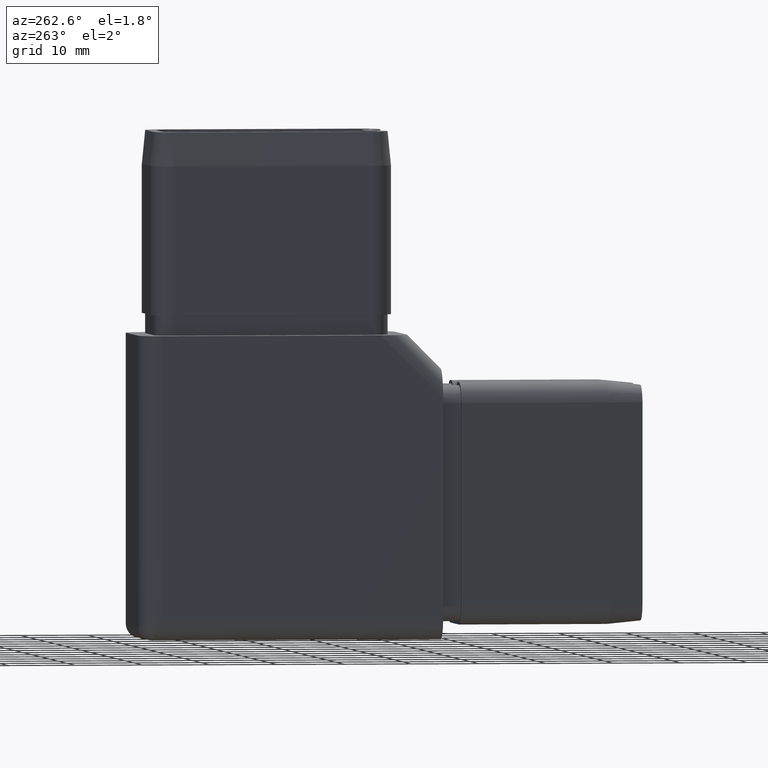
[diagram: clean part render]
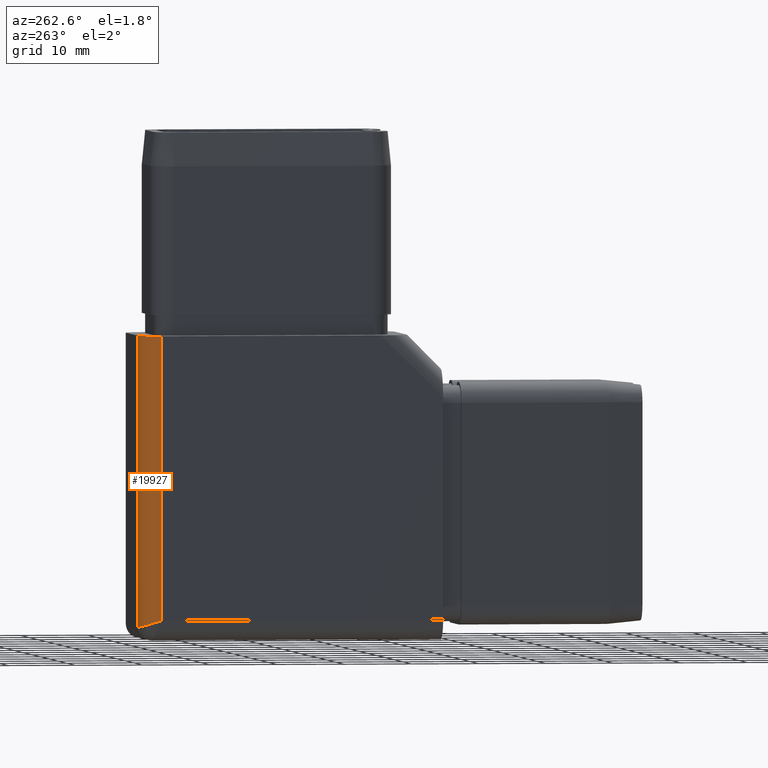
[diagram: same view with one face highlighted and labeled with its STEP entity id]
A machine part, auxiliary view. The second image highlights one B-rep face of the part: STEP entity #19927.
In plain terms, the highlighted cylindrical surface (edge-blend (fillet) strip) has radius 3 mm, axis along (-0, 0, 1).
Its self-contained STEP definition (entity closure, byte-faithful):
#167 = VERTEX_POINT ( 'NONE', #23611 ) ;
#453 = DIRECTION ( 'NONE',  ( -0.0000000000000000000, -1.541976423090495400E-016, 1.000000000000000000 ) ) ;
#1856 = CARTESIAN_POINT ( 'NONE',  ( -7.000000000000000900, 22.50000000000000000, -20.49999999999999600 ) ) ;
#2188 = DIRECTION ( 'NONE',  ( 0.0000000000000000000, 1.000000000000000000, 0.0000000000000000000 ) ) ;
#2227 = VERTEX_POINT ( 'NONE', #20741 ) ;
#3370 = CARTESIAN_POINT ( 'NONE',  ( -7.000000000000000900, 22.50000000000000000, -20.49999999999999600 ) ) ;
#4114 = VECTOR ( 'NONE', #23576, 1000.000000000000000 ) ;
#4662 = FACE_OUTER_BOUND ( 'NONE', #15334, .T. ) ;
#5214 = VERTEX_POINT ( 'NONE', #1856 ) ;
#5301 = CARTESIAN_POINT ( 'NONE',  ( -10.00000000000000000, 21.25735931288071600, -20.08578643762690100 ) ) ;
#5738 = EDGE_CURVE ( 'NONE', #9767, #2227, #17921, .T. ) ;
#6856 = LINE ( 'NONE', #21432, #4114 ) ;
#7906 = DIRECTION ( 'NONE',  ( -0.0000000000000000000, 0.0000000000000000000, 1.000000000000000000 ) ) ;
#8822 = CARTESIAN_POINT ( 'NONE',  ( -10.00000000000000000, 19.50000000000000000, 0.0000000000000000000 ) ) ;
#9767 = VERTEX_POINT ( 'NONE', #19507 ) ;
#10047 = EDGE_CURVE ( 'NONE', #2227, #167, #17515, .T. ) ;
#10968 = ORIENTED_EDGE ( 'NONE', *, *, #10047, .F. ) ;
#12196 = ORIENTED_EDGE ( 'NONE', *, *, #5738, .F. ) ;
#15057 = ORIENTED_EDGE ( 'NONE', *, *, #19659, .T. ) ;
#15334 = EDGE_LOOP ( 'NONE', ( #24014, #15057, #10968, #12196 ) ) ;
#17515 = LINE ( 'NONE', #8822, #24846 ) ;
#17921 = CIRCLE ( 'NONE', #19580, 2.999999999999999100 ) ;
#18753 = CYLINDRICAL_SURFACE ( 'NONE', #19439, 3.000000000000000000 ) ;
#18979 = CARTESIAN_POINT ( 'NONE',  ( -10.00000000000000000, 19.50000000000000000, -19.50000000000000000 ) ) ;
#18999 = CARTESIAN_POINT ( 'NONE',  ( -7.000000000000000900, 19.50000000000000000, 22.50000000000000000 ) ) ;
#19262 = DIRECTION ( 'NONE',  ( 1.000000000000000000, 0.0000000000000000000, 0.0000000000000000000 ) ) ;
#19439 = AXIS2_PLACEMENT_3D ( 'NONE', #18999, #7906, #19262 ) ;
#19507 = CARTESIAN_POINT ( 'NONE',  ( -7.000000000000000900, 22.50000000000000000, 22.50000000000000000 ) ) ;
#19580 = AXIS2_PLACEMENT_3D ( 'NONE', #23628, #453, #2188 ) ;
#19659 = EDGE_CURVE ( 'NONE', #5214, #167, #22659, .T. ) ;
#19927 = ADVANCED_FACE ( 'NONE', ( #4662 ), #18753, .T. ) ;
#20741 = CARTESIAN_POINT ( 'NONE',  ( -10.00000000000000000, 19.50000000000000000, 22.50000000000000000 ) ) ;
#21432 = CARTESIAN_POINT ( 'NONE',  ( -7.000000000000000900, 22.50000000000000000, 22.50000000000000000 ) ) ;
#22659 =( BOUNDED_CURVE ( )  B_SPLINE_CURVE ( 3, ( #3370, #22741, #5301, #18979 ),
 .UNSPECIFIED., .F., .F. ) 
 B_SPLINE_CURVE_WITH_KNOTS ( ( 4, 4 ),
 ( 0.0000000000000000000, 1.570796326794896600 ),
 .UNSPECIFIED. ) 
 CURVE ( )  GEOMETRIC_REPRESENTATION_ITEM ( )  RATIONAL_B_SPLINE_CURVE ( ( 1.000000000000000000, 0.8047378541243649400, 0.8047378541243649400, 1.000000000000000000 ) ) 
 REPRESENTATION_ITEM ( '' )  );
#22741 = CARTESIAN_POINT ( 'NONE',  ( -8.757359312880716100, 22.50000000000000000, -20.49999999999999600 ) ) ;
#22814 = DIRECTION ( 'NONE',  ( 0.0000000000000000000, -0.0000000000000000000, -1.000000000000000000 ) ) ;
#23576 = DIRECTION ( 'NONE',  ( -0.0000000000000000000, 0.0000000000000000000, 1.000000000000000000 ) ) ;
#23611 = CARTESIAN_POINT ( 'NONE',  ( -10.00000000000000000, 19.50000000000000000, -19.50000000000000000 ) ) ;
#23628 = CARTESIAN_POINT ( 'NONE',  ( -7.000000000000000900, 19.50000000000000000, 22.50000000000000000 ) ) ;
#24014 = ORIENTED_EDGE ( 'NONE', *, *, #24531, .F. ) ;
#24531 = EDGE_CURVE ( 'NONE', #5214, #9767, #6856, .T. ) ;
#24846 = VECTOR ( 'NONE', #22814, 1000.000000000000000 ) ;